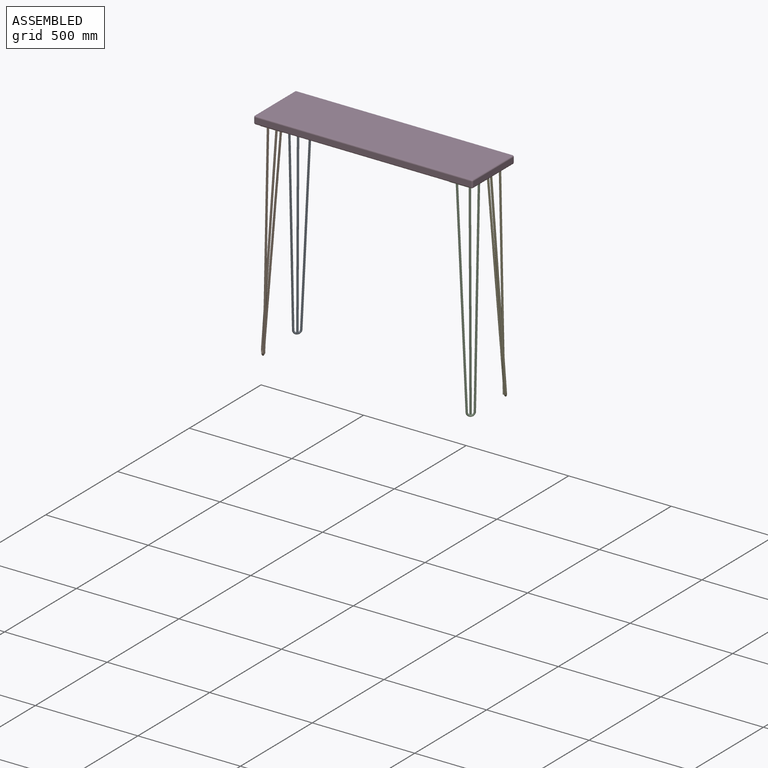
[diagram: assembled view]
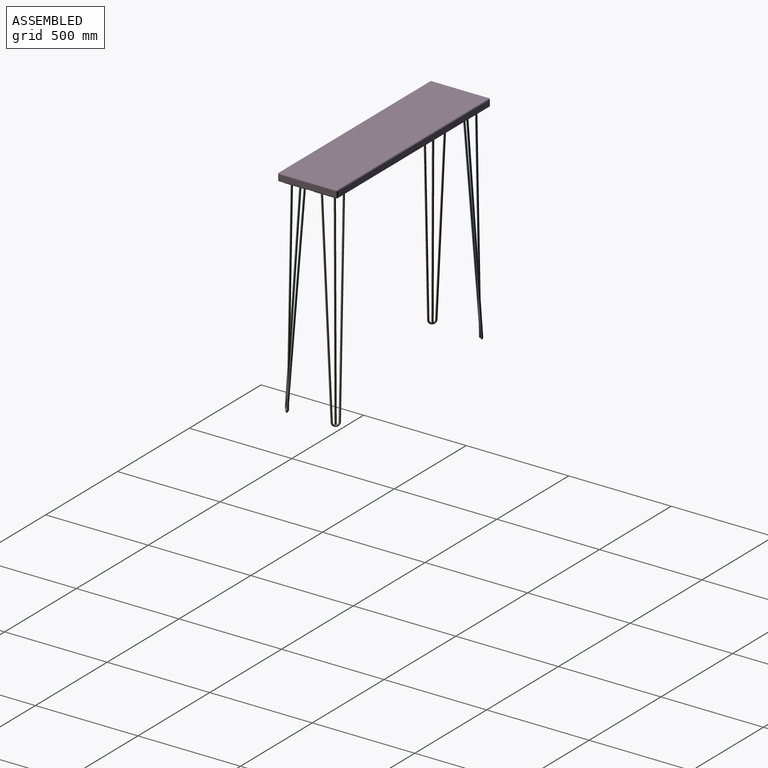
[diagram: assembled view, second angle]
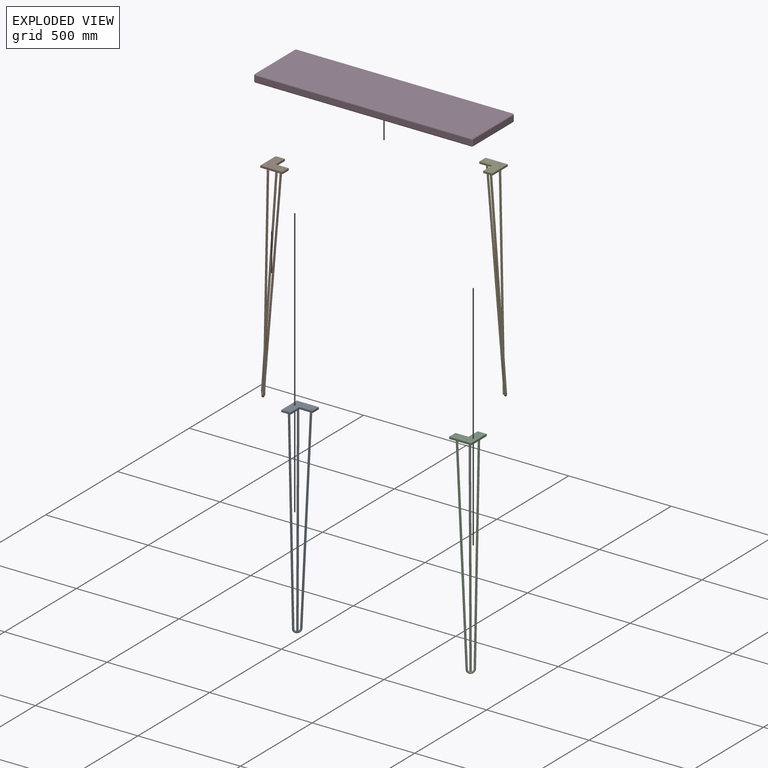
[diagram: exploded view]
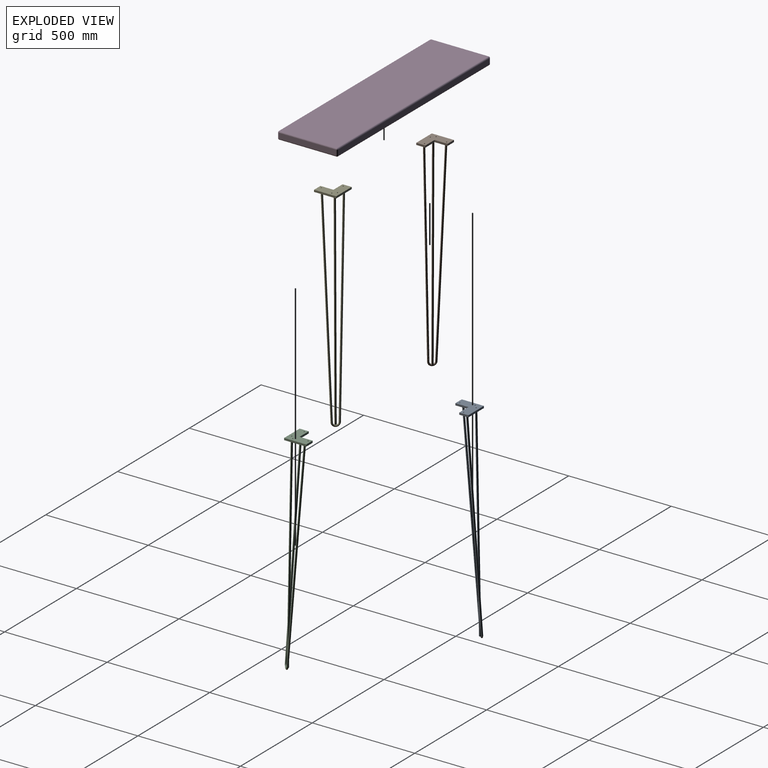
[diagram: exploded view, second angle]
ASSEMBLY  parts=5 mates=4
PART A: 19 faces, bbox 118x118x1021.2 mm
  f0: plane 109.28x109.28mm, normal (0,0,-1), area 7361mm2, adj f1,f2,f3,f4,f5,f6,f8,f9
  f1: plane 63.5x9.53mm, normal (0,-1,0), area 604.8mm2, adj f0,f2,f6,f7
  f2: plane 63.5x9.53mm, normal (-1,0,0), area 604.8mm2, adj f0,f1,f3,f7
  f3: plane 44.45x9.53mm, normal (0,-1,0), area 423.4mm2, adj f0,f2,f4,f7
  f4: plane 107.95x9.53mm, normal (1,0,0), area 1028.2mm2, adj f0,f3,f5,f7
  f5: plane 107.95x9.53mm, normal (0,1,0), area 1028.2mm2, adj f0,f4,f6,f7
  f6: plane 44.45x9.53mm, normal (-1,0,0), area 423.4mm2, adj f0,f1,f5,f7
  f7: plane 107.95x107.95mm, normal (0,0,1), area 7539.1mm2, adj f1,f2,f3,f4,f5,f6,f8,f9
  f8: cylinder r=2.55mm len=9.53mm, axis (0,0,-1), area 152.8mm2, adj f0,f7
  f9: cylinder r=2.55mm len=9.53mm, axis (0,0,-1), area 152.8mm2, adj f0,f7
  f10: cylinder r=2.55mm len=9.53mm, axis (0,0,-1), area 152.8mm2, adj f0,f7
  f11: cylinder r=2.55mm len=9.53mm, axis (0,0,-1), area 152.8mm2, adj f0,f7
  f12: plane 9.19x6.46mm, normal (-0.13,-0.05,0.99), area 35.6mm2, adj f0,f13
  f13: bspline ~991.95x75.96mm, area 29731.7mm2, adj f0,f12,f15
  f14: bspline ~990.6x85.66mm, area 29738.2mm2, adj f0,f15
  f15: bspline ~32.6x32.56mm, area 1488.4mm2, adj f13,f14,f17,f18
  f16: bspline ~990.6x30.37mm, area 29701.5mm2, adj f0,f17
  f17: cylinder r=4.76mm len=12.7mm, axis (0,0,1), area 371.6mm2, adj f15,f16,f18
  f18: plane 9.08x9.08mm, normal (0,0,-1), area 54.1mm2, adj f15,f17
PART B: same geometry as A
PART C: same geometry as A
PART D: 35 faces, bbox 1066.8x292.1x38.1 mm
  f0: plane 1054.1x25.4mm, normal (0,1,0), area 26774.1mm2, adj f13,f18,f21,f24
  f1: plane 279.4x25.4mm, normal (-1,0,0), area 7096.8mm2, adj f10,f19,f20,f24
  f2: plane 1054.1x25.4mm, normal (0,-1,0), area 26774.1mm2, adj f5,f9,f10,f11
  f3: plane 279.4x25.4mm, normal (1,0,0), area 7096.8mm2, adj f5,f8,f12,f13
  f4: plane 1054.1x279.4mm, normal (0,0,1), area 294515.5mm2, adj f8,f9,f18,f19
  f5: cylinder r=6.35mm len=25.4mm, axis (0,0,1), area 253.4mm2, adj f2,f3,f6,f7
  f6: sphere r=6.35mm, area 63.3mm2, adj f5,f8,f9
  f7: sphere r=6.35mm, area 63.3mm2, adj f5,f11,f12
  f8: cylinder r=6.35mm len=279.4mm, axis (0,-1,0), area 2786.9mm2, adj f3,f4,f6,f14
  f9: cylinder r=6.35mm len=1054.1mm, axis (-1,0,0), area 10514.2mm2, adj f2,f4,f6,f15
  f10: cylinder r=6.35mm len=25.4mm, axis (0,0,-1), area 253.4mm2, adj f1,f2,f15,f16
  f11: cylinder r=6.35mm len=1054.1mm, axis (1,0,0), area 10514.2mm2, adj f2,f7,f16,f27
  f12: cylinder r=6.35mm len=279.4mm, axis (0,1,0), area 2786.9mm2, adj f3,f7,f17,f26
  f13: cylinder r=6.35mm len=25.4mm, axis (0,0,-1), area 253.4mm2, adj f0,f3,f14,f17
  f14: sphere r=6.35mm, area 63.3mm2, adj f8,f13,f18
  f15: sphere r=6.35mm, area 63.3mm2, adj f9,f10,f19
  f16: sphere r=6.35mm, area 63.3mm2, adj f10,f11,f20
  f17: sphere r=6.35mm, area 63.3mm2, adj f12,f13,f21
  f18: cylinder r=6.35mm len=1054.1mm, axis (1,0,0), area 10514.2mm2, adj f0,f4,f14,f22
  f19: cylinder r=6.35mm len=279.4mm, axis (0,1,0), area 2786.9mm2, adj f1,f4,f15,f22
  f20: cylinder r=6.35mm len=279.4mm, axis (0,-1,0), area 2786.9mm2, adj f1,f16,f23,f32
  f21: cylinder r=6.35mm len=1054.1mm, axis (-1,0,0), area 10514.2mm2, adj f0,f17,f23,f25
  f22: sphere r=6.35mm, area 63.3mm2, adj f18,f19,f24
  f23: sphere r=6.35mm, area 63.3mm2, adj f20,f21,f24
  f24: cylinder r=6.35mm len=25.4mm, axis (0,0,1), area 253.4mm2, adj f0,f1,f22,f23
  f25: plane 1054.1x1.27mm, normal (0,-1,0), area 1338.7mm2, adj f21,f26,f32,f33
  f26: plane 279.4x1.27mm, normal (-1,0,0), area 354.8mm2, adj f12,f25,f27,f33
  f27: plane 1054.1x1.27mm, normal (0,1,0), area 1338.7mm2, adj f11,f26,f32,f33
  f28: plane 254x1.27mm, normal (1,0,0), area 322.6mm2, adj f29,f31,f33,f34
  f29: plane 1028.7x1.27mm, normal (0,1,0), area 1306.4mm2, adj f28,f30,f33,f34
  f30: plane 254x1.27mm, normal (-1,0,0), area 322.6mm2, adj f29,f31,f33,f34
  f31: plane 1028.7x1.27mm, normal (0,-1,0), area 1306.4mm2, adj f28,f30,f33,f34
  f32: plane 279.4x1.27mm, normal (1,0,0), area 354.8mm2, adj f20,f25,f27,f33
  f33: plane 1054.1x279.4mm, normal (0,0,-1), area 33225.7mm2, adj f25,f26,f27,f28,f29,f30,f31,f32
  f34: plane 1028.7x254mm, normal (0,0,-1), area 261289.8mm2, adj f28,f29,f30,f31
PART E: same geometry as A
PLACE A rot(axis=(0,0,1),90deg) t=(-469.9,82.55,-9.52)mm
PLACE B rot(axis=(0,0,1),180deg) t=(-469.9,-82.55,-9.52)mm
PLACE C rot(axis=(0,0,-1),90deg) t=(469.9,-82.55,-9.52)mm
PLACE D at identity fixed
PLACE E t=(469.9,82.55,-9.53)mm
MATE fastened B.f7 <-> D.f34  axis (0,0,1) through (-514.35,-127,0)mm
MATE fastened E.f7 <-> D.f34  axis (0,0,1) through (514.35,127,0)mm
MATE fastened C.f7 <-> D.f34  axis (0,0,1) through (514.35,-127,0)mm
MATE fastened A.f7 <-> D.f34  axis (0,0,1) through (-514.35,127,0)mm
